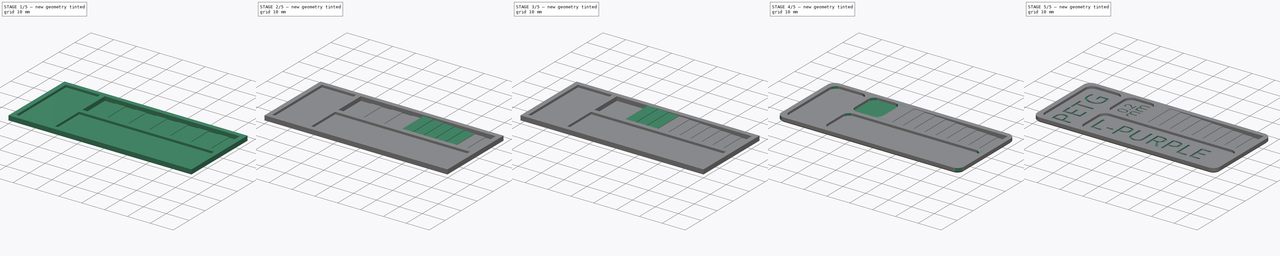
[diagram: build sequence overview — one tinted view per stage of 5, left to right]
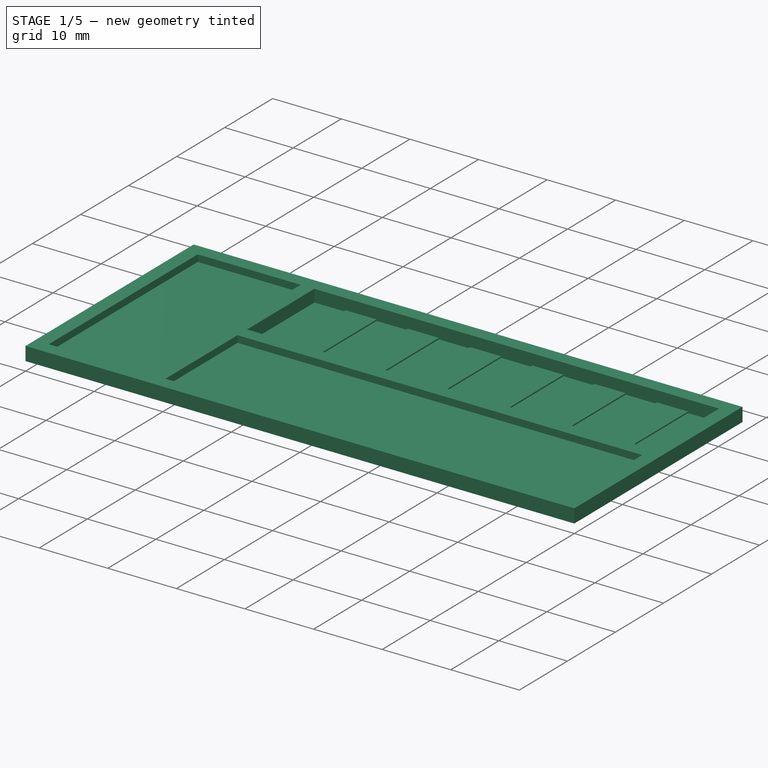
[diagram: stage 1 of 5 — iso view after this stage's code; geometry added in this stage tinted green]
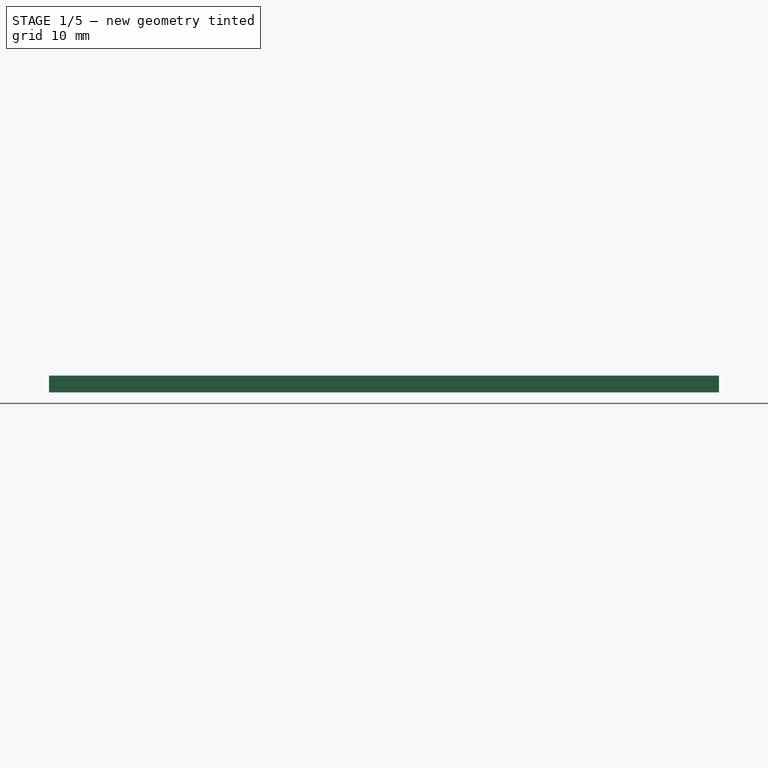
[diagram: stage 1 of 5 — front view after this stage's code; geometry added in this stage tinted green]
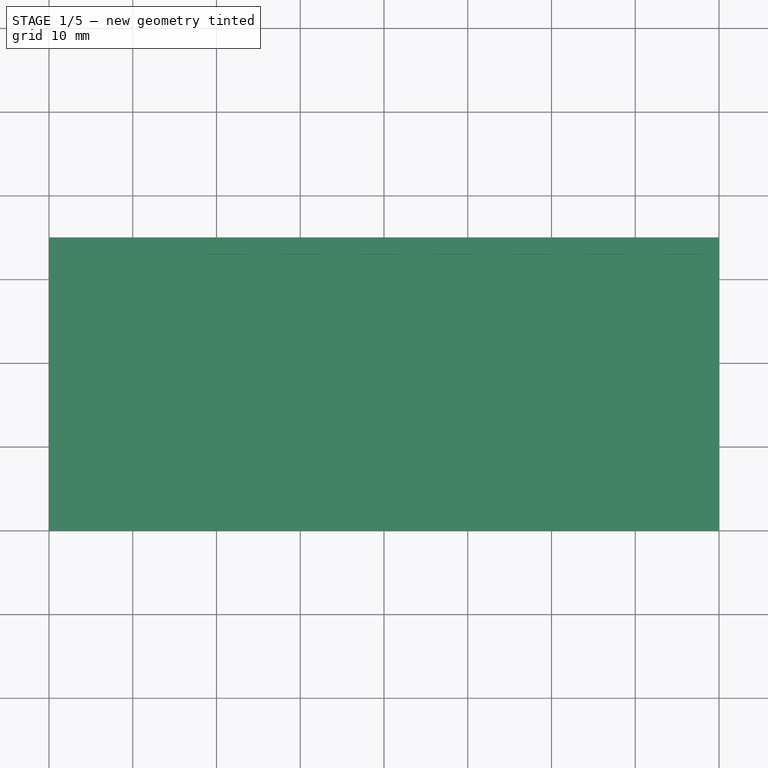
[diagram: stage 1 of 5 — top view after this stage's code; geometry added in this stage tinted green]
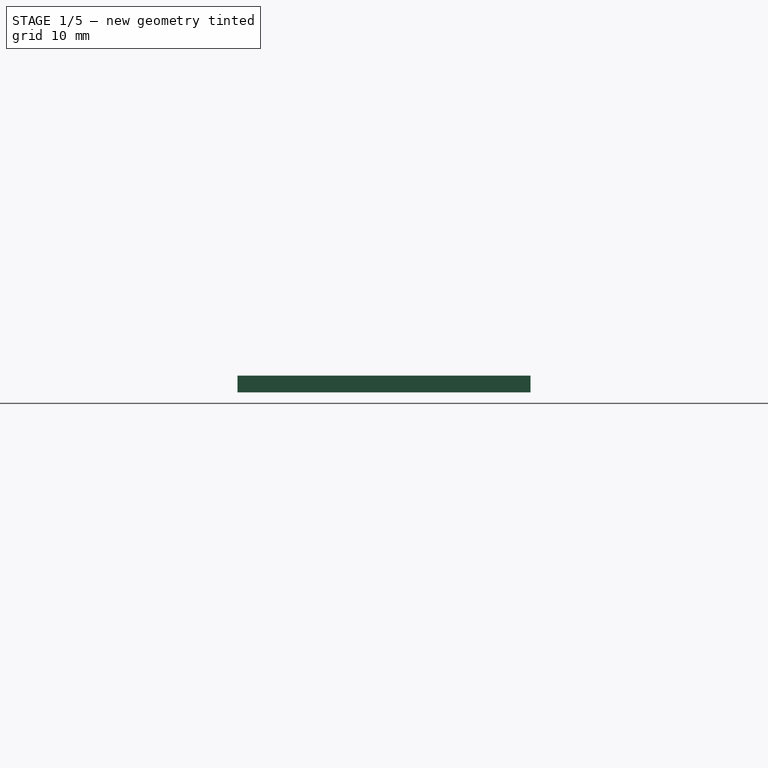
[diagram: stage 1 of 5 — right view after this stage's code; geometry added in this stage tinted green]
FCSTD DOCUMENT  (FreeCAD 0.21R33668 +26 (Git))
Label: Color Swatch
License: All rights reserved
LicenseURL: http://en.wikipedia.org/wiki/All_rights_reserved
objects: PartDesign::Pad×12, PartDesign::Pocket×7, Sketcher::SketchObject×5, Part::Part2DObjectPython×4, PartDesign::Body×2, PartDesign::Fillet×1, PartDesign::Chamfer×1, PartDesign::FeatureBase×1
note: 54 computed .brp shape members not serialized (recipe doc carries the construction recipe); baked Part::Feature solids carry a one-line shape summary decoded from their .brp

FEATURE [Sketcher::SketchObject] Sketch
  FullyConstrained = true
  MapMode = 5
  Support = -> [XY_Plane]
  sketch-geometry (4):
    g0: LineSegment StartX=0 StartY=0 StartZ=0 EndX=80 EndY=0 EndZ=0
    g1: LineSegment StartX=80 StartY=0 StartZ=0 EndX=80 EndY=35 EndZ=0
    g2: LineSegment StartX=80 StartY=35 StartZ=0 EndX=0 EndY=35 EndZ=0
    g3: LineSegment StartX=0 StartY=35 StartZ=0 EndX=0 EndY=0 EndZ=0
  constraints (11):
    c: Coincident(g0,g1)
    c: Coincident(g1,g2)
    c: Coincident(g2,g3)
    c: Coincident(g3,g0)
    c: Horizontal(g0)
    c: Horizontal(g2)
    c: Vertical(g1)
    c: Vertical(g3)
    c: Coincident(g0,g-1)
    c: Distance(g0) = 80
    c: Distance(g1) = 35
FEATURE [PartDesign::Pad] Pad
  Direction = (0,0,1)
  Length = 2
  Length2 = 10
  Profile = -> Sketch
  ReferenceAxis = -> Sketch [N_Axis]
  Type = 0
FEATURE [Sketcher::SketchObject] Sketch001
  ExternalGeometry = -> [Pad]
  FullyConstrained = true
  MapMode = 5
  Placement = pos=(0,0,2) rot=(0,0,1;0rad)
  Support = -> [Pad]
  sketch-geometry (15):
    g0: LineSegment StartX=0 StartY=0 StartZ=0 EndX=2 EndY=0 EndZ=0
    g1: LineSegment StartX=2 StartY=0 StartZ=0 EndX=2 EndY=2 EndZ=0
    g2: LineSegment StartX=2 StartY=2 StartZ=0 EndX=0 EndY=2 EndZ=0
    g3: LineSegment StartX=0 StartY=2 StartZ=0 EndX=0 EndY=0 EndZ=0
    g4: LineSegment StartX=2 StartY=2 StartZ=0 EndX=17 EndY=2 EndZ=0
    g5: LineSegment StartX=17 StartY=2 StartZ=0 EndX=17 EndY=33 EndZ=0
    g6: LineSegment StartX=17 StartY=33 StartZ=0 EndX=2 EndY=33 EndZ=0
    g7: LineSegment StartX=2 StartY=33 StartZ=0 EndX=2 EndY=2 EndZ=0
    g8: LineSegment StartX=2 StartY=2 StartZ=0 EndX=78 EndY=2 EndZ=0
    g9: LineSegment StartX=78 StartY=2 StartZ=0 EndX=78 EndY=17 EndZ=0
    g10: LineSegment StartX=78 StartY=17 StartZ=0 EndX=2 EndY=17 EndZ=0
    g11: LineSegment StartX=2 StartY=17 StartZ=0 EndX=2 EndY=2 EndZ=0
    g12: LineSegment StartX=78 StartY=17 StartZ=0 EndX=19 EndY=17 EndZ=0
    g13: LineSegment StartX=19 StartY=17 StartZ=0 EndX=19 EndY=2 EndZ=0
    g14: LineSegment StartX=19 StartY=2 StartZ=0 EndX=78 EndY=2 EndZ=0
  constraints (41):
    c: Coincident(g0,g1)
    c: Coincident(g1,g2)
    c: Coincident(g2,g3)
    c: Coincident(g3,g0)
    c: Horizontal(g0)
    c: Horizontal(g2)
    c: Vertical(g1)
    c: Vertical(g3)
    c: Coincident(g0,g-3)
    c: Distance(g1) = 2
    c: Distance(g2) = 2
    c: Coincident(g4,g5)
    c: Coincident(g5,g6)
    c: Coincident(g6,g7)
    c: Coincident(g7,g4)
    c: Horizontal(g4)
    c: Horizontal(g6)
    c: Vertical(g5)
    c: Vertical(g7)
    c: Coincident(g4,g1)
    c: Distance(g4) = 15
    c: Coincident(g8,g9)
    c: Coincident(g9,g10)
    c: Coincident(g10,g11)
    c: Coincident(g11,g8)
    c: Horizontal(g8)
    c: Horizontal(g10)
    c: Vertical(g9)
    c: Vertical(g11)
    c: Coincident(g8,g1)
    c: Distance(g11) = 15
    c: DistanceX(g8,g-3) = 2
    c: DistanceY(g6,g-4) = 2
    c: Coincident(g12,g9)
    c: PointOnObject(g12,g10)
    c: Coincident(g13,g12)
    c: PointOnObject(g13,g8)
    c: Vertical(g13)
    c: Coincident(g14,g13)
    c: Coincident(g14,g9)
    c: DistanceX(g4,g13) = 2
FEATURE [PartDesign::Pocket] Pocket
  BaseFeature = -> Pad
  Direction = (0,0,-1)
  Length = 1
  Length2 = 5
  Profile = -> Sketch001
  ReferenceAxis = -> Sketch001 [N_Axis]
  Type = 0
FEATURE [Sketcher::SketchObject] Sketch002
  ExternalGeometry = -> [Pocket]
  FullyConstrained = true
  MapMode = 5
  Placement = pos=(0,0,2) rot=(0,0,1;0rad)
  Support = -> [Pocket]
  sketch-geometry (4):
    g0: LineSegment StartX=19 StartY=19 StartZ=0 EndX=78 EndY=19 EndZ=0
    g1: LineSegment StartX=78 StartY=19 StartZ=0 EndX=78 EndY=33 EndZ=0
    g2: LineSegment StartX=78 StartY=33 StartZ=0 EndX=19 EndY=33 EndZ=0
    g3: LineSegment StartX=19 StartY=33 StartZ=0 EndX=19 EndY=19 EndZ=0
  constraints (12):
    c: Coincident(g0,g1)
    c: Coincident(g1,g2)
    c: Coincident(g2,g3)
    c: Coincident(g3,g0)
    c: Horizontal(g0)
    c: Horizontal(g2)
    c: Vertical(g1)
    c: Vertical(g3)
    c: DistanceY(g-3,g0) = 2
    c: DistanceY(g1,g-5) = 2
    c: DistanceX(g-4,g2) = 2
    c: DistanceX(g1,g-5) = 2
FEATURE [Part::Part2DObjectPython] ShapeString  label="Color Name"  # Draft 2D object (typed FeaturePython)
  FontFile = F:/16 Bit Git Repro/16 Bit Store/Font/OpenSans-Regular.ttf
  MakeFace = true
  Placement = pos=(20.33,5.565,2) rot=(0,0,1;0rad)
  Size = 10
  String = L-PURPLE
  Tracking = 0
FEATURE [Part::Part2DObjectPython] ShapeString001  label="Material Name"  # Draft 2D object (typed FeaturePython)
  FontFile = F:/16 Bit Git Repro/16 Bit Store/Font/OpenSans-Regular.ttf
  MakeFace = true
  Placement = pos=(13.435,2.92,2) rot=(0,0,1;1.5708rad)
  Size = 10
  String = PETG
  Tracking = 0
FEATURE [PartDesign::Pocket] Pocket001
  BaseFeature = -> Pocket
  Direction = (0,0,-1)
  Length = 0
  Length2 = 5
  Offset = 0.2
  Profile = -> Sketch002
  ReferenceAxis = -> Sketch002 [N_Axis]
  Reversed = true
  Type = 3
  UpToFace = -> Pocket [Face4]
FEATURE [Sketcher::SketchObject] Sketch003
  ExternalGeometry = -> [Pocket001]
  FullyConstrained = true
  MapMode = 5
  Placement = pos=(0,0,0.2) rot=(0,0,1;0rad)
  Support = -> [Pocket001]
  sketch-geometry (52):
    g0: LineSegment StartX=78 StartY=33 StartZ=0 EndX=73.4615 EndY=33 EndZ=0
    g1: LineSegment StartX=73.4615 StartY=33 StartZ=0 EndX=73.4615 EndY=19 EndZ=0
    g2: LineSegment StartX=73.4615 StartY=19 StartZ=0 EndX=78 EndY=19 EndZ=0
    g3: LineSegment StartX=78 StartY=19 StartZ=0 EndX=78 EndY=33 EndZ=0
    g4: LineSegment StartX=68.9231 StartY=19 StartZ=0 EndX=64.3846 EndY=19 EndZ=0
    g5: LineSegment StartX=64.3846 StartY=19 StartZ=0 EndX=64.3846 EndY=33 EndZ=0
    g6: LineSegment StartX=64.3846 StartY=33 StartZ=0 EndX=68.9231 EndY=33 EndZ=0
    g7: LineSegment StartX=68.9231 StartY=33 StartZ=0 EndX=68.9231 EndY=19 EndZ=0
    g8: LineSegment StartX=59.8462 StartY=33 StartZ=0 EndX=55.3077 EndY=33 EndZ=0
    g9: LineSegment StartX=55.3077 StartY=33 StartZ=0 EndX=55.3077 EndY=19 EndZ=0
    g10: LineSegment StartX=55.3077 StartY=19 StartZ=0 EndX=59.8462 EndY=19 EndZ=0
    g11: LineSegment StartX=59.8462 StartY=19 StartZ=0 EndX=59.8462 EndY=33 EndZ=0
    g12: LineSegment StartX=50.7692 StartY=19 StartZ=0 EndX=46.2308 EndY=19 EndZ=0
    g13: LineSegment StartX=46.2308 StartY=19 StartZ=0 EndX=46.2308 EndY=33 EndZ=0
    g14: LineSegment StartX=46.2308 StartY=33 StartZ=0 EndX=50.7692 EndY=33 EndZ=0
    g15: LineSegment StartX=50.7692 StartY=33 StartZ=0 EndX=50.7692 EndY=19 EndZ=0
    g16: LineSegment StartX=41.6923 StartY=33 StartZ=0 EndX=37.1538 EndY=33 EndZ=0
    g17: LineSegment StartX=37.1538 StartY=33 StartZ=0 EndX=37.1538 EndY=19 EndZ=0
    g18: LineSegment StartX=37.1538 StartY=19 StartZ=0 EndX=41.6923 EndY=19 EndZ=0
    g19: LineSegment StartX=41.6923 StartY=19 StartZ=0 EndX=41.6923 EndY=33 EndZ=0
    g20: LineSegment StartX=32.6154 StartY=19 StartZ=0 EndX=28.0769 EndY=19 EndZ=0
    g21: LineSegment StartX=28.0769 StartY=19 StartZ=0 EndX=28.0769 EndY=33 EndZ=0
    g22: LineSegment StartX=28.0769 StartY=33 StartZ=0 EndX=32.6154 EndY=33 EndZ=0
    g23: LineSegment StartX=32.6154 StartY=33 StartZ=0 EndX=32.6154 EndY=19 EndZ=0
    g24: LineSegment StartX=19 StartY=33 StartZ=0 EndX=23.5385 EndY=33 EndZ=0
    g25: LineSegment StartX=23.5385 StartY=33 StartZ=0 EndX=23.5385 EndY=19 EndZ=0
    g26: LineSegment StartX=23.5385 StartY=19 StartZ=0 EndX=19 EndY=19 EndZ=0
    g27: LineSegment StartX=19 StartY=19 StartZ=0 EndX=19 EndY=33 EndZ=0
    g28: LineSegment StartX=23.5385 StartY=33 StartZ=0 EndX=28.0769 EndY=33 EndZ=0
    g29: LineSegment StartX=28.0769 StartY=33 StartZ=0 EndX=28.0769 EndY=19 EndZ=0
    g30: LineSegment StartX=28.0769 StartY=19 StartZ=0 EndX=23.5385 EndY=19 EndZ=0
    g31: LineSegment StartX=23.5385 StartY=19 StartZ=0 EndX=23.5385 EndY=33 EndZ=0
    g32: LineSegment StartX=32.6154 StartY=33 StartZ=0 EndX=37.1538 EndY=33 EndZ=0
    g33: LineSegment StartX=37.1538 StartY=33 StartZ=0 EndX=37.1538 EndY=19 EndZ=0
    g34: LineSegment StartX=37.1538 StartY=19 StartZ=0 EndX=32.6154 EndY=19 EndZ=0
    g35: LineSegment StartX=32.6154 StartY=19 StartZ=0 EndX=32.6154 EndY=33 EndZ=0
    g36: LineSegment StartX=41.6923 StartY=33 StartZ=0 EndX=46.2308 EndY=33 EndZ=0
    g37: LineSegment StartX=46.2308 StartY=33 StartZ=0 EndX=46.2308 EndY=19 EndZ=0
    g38: LineSegment StartX=46.2308 StartY=19 StartZ=0 EndX=41.6923 EndY=19 EndZ=0
    g39: LineSegment StartX=41.6923 StartY=19 StartZ=0 EndX=41.6923 EndY=33 EndZ=0
    g40: LineSegment StartX=50.7692 StartY=33 StartZ=0 EndX=55.3077 EndY=33 EndZ=0
    g41: LineSegment StartX=55.3077 StartY=33 StartZ=0 EndX=55.3077 EndY=19 EndZ=0
    g42: LineSegment StartX=55.3077 StartY=19 StartZ=0 EndX=50.7692 EndY=19 EndZ=0
    g43: LineSegment StartX=50.7692 StartY=19 StartZ=0 EndX=50.7692 EndY=33 EndZ=0
    g44: LineSegment StartX=59.8462 StartY=33 StartZ=0 EndX=64.3846 EndY=33 EndZ=0
    g45: LineSegment StartX=64.3846 StartY=33 StartZ=0 EndX=64.3846 EndY=19 EndZ=0
    g46: LineSegment StartX=64.3846 StartY=19 StartZ=0 EndX=59.8462 EndY=19 EndZ=0
    g47: LineSegment StartX=59.8462 StartY=19 StartZ=0 EndX=59.8462 EndY=33 EndZ=0
    g48: LineSegment StartX=68.9231 StartY=33 StartZ=0 EndX=73.4615 EndY=33 EndZ=0
    g49: LineSegment StartX=73.4615 StartY=33 StartZ=0 EndX=73.4615 EndY=19 EndZ=0
    g50: LineSegment StartX=73.4615 StartY=19 StartZ=0 EndX=68.9231 EndY=19 EndZ=0
    g51: LineSegment StartX=68.9231 StartY=19 StartZ=0 EndX=68.9231 EndY=33 EndZ=0
  constraints (142):
    c: Coincident(g0,g1)
    c: Coincident(g1,g2)
    c: Coincident(g2,g3)
    c: Coincident(g3,g0)
    c: Horizontal(g0)
    c: Horizontal(g2)
    c: Vertical(g1)
    c: Vertical(g3)
    c: Coincident(g0,g-4)
    c: PointOnObject(g1,g-3)
    c: Coincident(g4,g5)
    c: Coincident(g5,g6)
    c: Coincident(g6,g7)
    c: Coincident(g7,g4)
    c: Horizontal(g4)
    c: Horizontal(g6)
    c: Vertical(g5)
    c: Vertical(g7)
    c: PointOnObject(g4,g-3)
    c: PointOnObject(g5,g-4)
    c: Coincident(g8,g9)
    c: Coincident(g9,g10)
    c: Coincident(g10,g11)
    c: Coincident(g11,g8)
    c: Horizontal(g8)
    c: Horizontal(g10)
    c: Vertical(g9)
    c: Vertical(g11)
    c: PointOnObject(g8,g-4)
    c: PointOnObject(g9,g-3)
    c: Coincident(g12,g13)
    c: Coincident(g13,g14)
    c: Coincident(g14,g15)
    c: Coincident(g15,g12)
    c: Horizontal(g12)
    c: Horizontal(g14)
    c: Vertical(g13)
    c: Vertical(g15)
    c: PointOnObject(g12,g-3)
    c: PointOnObject(g13,g-4)
    c: Coincident(g16,g17)
    c: Coincident(g17,g18)
    c: Coincident(g18,g19)
    c: Coincident(g19,g16)
    c: Horizontal(g16)
    c: Horizontal(g18)
    c: Vertical(g17)
    c: Vertical(g19)
    c: PointOnObject(g16,g-4)
    c: PointOnObject(g17,g-3)
    c: Coincident(g20,g21)
    c: Coincident(g21,g22)
    c: Coincident(g22,g23)
    c: Coincident(g23,g20)
    c: Horizontal(g20)
    c: Horizontal(g22)
    c: Vertical(g21)
    c: Vertical(g23)
    c: PointOnObject(g20,g-3)
    c: Coincident(g24,g25)
    c: Coincident(g25,g26)
    c: Coincident(g26,g27)
    c: Coincident(g27,g24)
    c: Horizontal(g24)
    c: Horizontal(g26)
    c: Vertical(g25)
    c: Vertical(g27)
    c: Coincident(g24,g-4)
    c: PointOnObject(g25,g-3)
    c: PointOnObject(g21,g-4)
    c: Coincident(g28,g29)
    c: Coincident(g29,g30)
    c: Coincident(g30,g31)
    c: Coincident(g31,g28)
    c: Horizontal(g28)
    c: Horizontal(g30)
    c: Vertical(g29)
    c: Vertical(g31)
    c: Coincident(g28,g24)
    c: Coincident(g29,g20)
    c: Coincident(g32,g33)
    c: Coincident(g33,g34)
    c: Coincident(g34,g35)
    c: Coincident(g35,g32)
    c: Horizontal(g32)
    c: Horizontal(g34)
    c: Vertical(g33)
    c: Vertical(g35)
    c: Coincident(g32,g22)
    c: Coincident(g33,g17)
    c: Coincident(g36,g37)
    c: Coincident(g37,g38)
    c: Coincident(g38,g39)
    c: Coincident(g39,g36)
    c: Horizontal(g36)
    c: Horizontal(g38)
    c: Vertical(g37)
    c: Vertical(g39)
    c: Coincident(g36,g16)
    c: Coincident(g37,g12)
    c: Coincident(g40,g41)
    c: Coincident(g41,g42)
    c: Coincident(g42,g43)
    c: Coincident(g43,g40)
    c: Horizontal(g40)
    c: Horizontal(g42)
    c: Vertical(g41)
    c: Vertical(g43)
    c: Coincident(g40,g14)
    c: Coincident(g41,g9)
    c: Coincident(g44,g45)
    c: Coincident(g45,g46)
    c: Coincident(g46,g47)
    c: Coincident(g47,g44)
    c: Horizontal(g44)
    c: Horizontal(g46)
    c: Vertical(g45)
    c: Vertical(g47)
    c: Coincident(g44,g8)
    c: Coincident(g45,g4)
    c: Coincident(g48,g49)
    c: Coincident(g49,g50)
    c: Coincident(g50,g51)
    c: Coincident(g51,g48)
    c: Horizontal(g48)
    c: Horizontal(g50)
    c: Vertical(g49)
    c: Vertical(g51)
    c: Coincident(g48,g6)
    c: Coincident(g49,g1)
    c: Equal(g26,g30)
    c: Equal(g30,g20)
    c: Equal(g34,g18)
    c: Equal(g18,g38)
    c: Equal(g38,g12)
    c: Equal(g12,g42)
    c: Equal(g42,g10)
    c: Equal(g10,g46)
    c: Equal(g46,g4)
    c: Equal(g50,g4)
    c: Equal(g50,g2)
    c: Equal(g20,g34)
FEATURE [PartDesign::Pad] Pad001
  BaseFeature = -> Pocket001
  Direction = (0,0,1)
  Length = 0.2
  Length2 = 10
  Profile = -> Sketch003
  ReferenceAxis = -> Sketch003 [N_Axis]
  Refine = true
  Type = 0
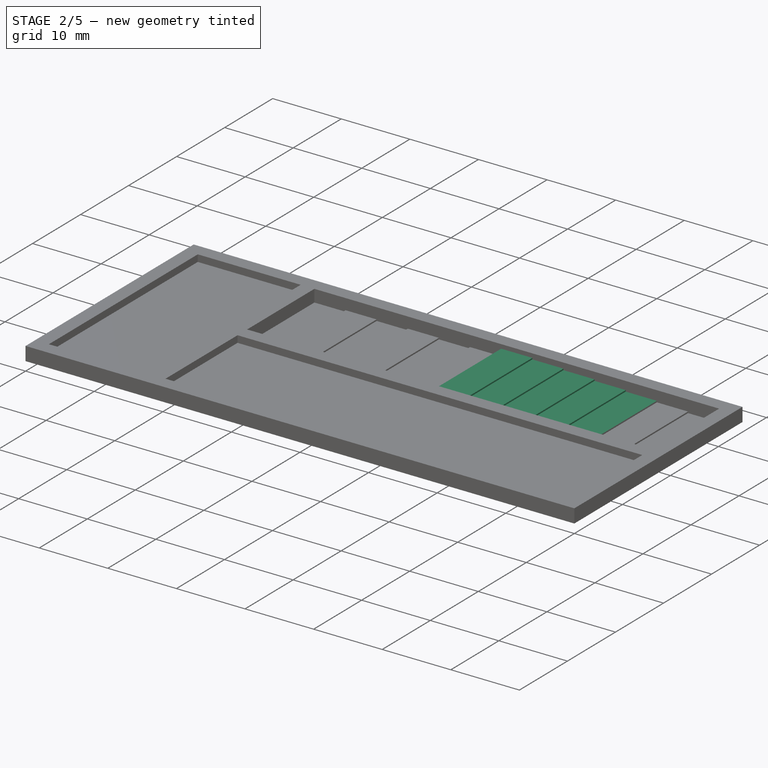
[diagram: stage 2 of 5 — iso view after this stage's code; geometry added in this stage tinted green]
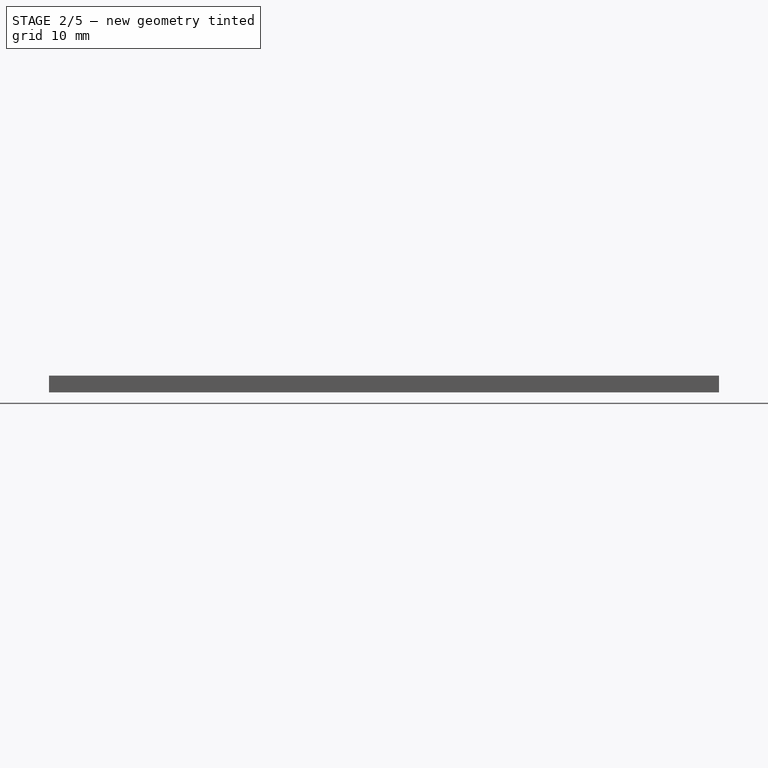
[diagram: stage 2 of 5 — front view after this stage's code; geometry added in this stage tinted green]
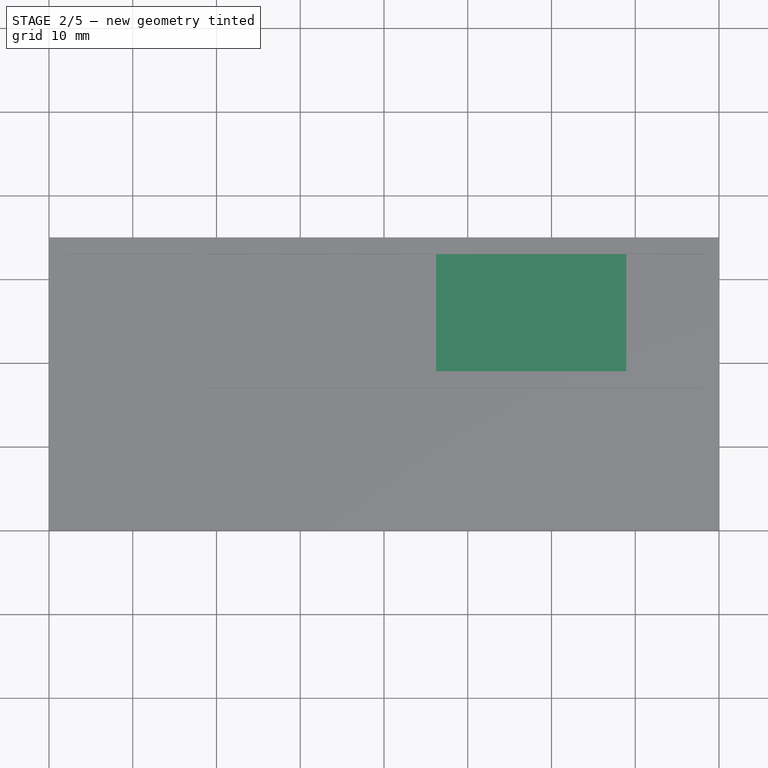
[diagram: stage 2 of 5 — top view after this stage's code; geometry added in this stage tinted green]
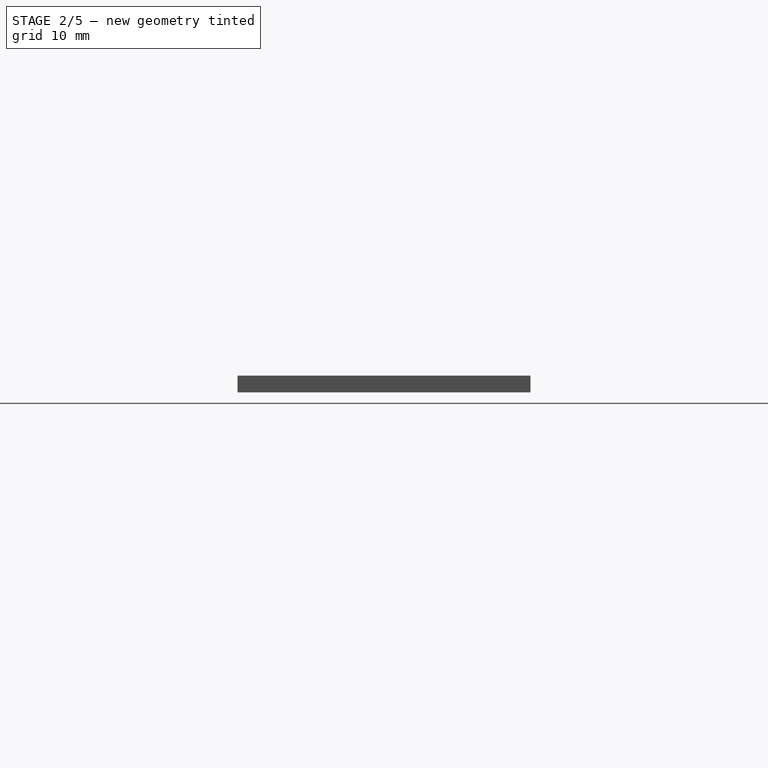
[diagram: stage 2 of 5 — right view after this stage's code; geometry added in this stage tinted green]
FEATURE [PartDesign::Pad] Pad002
  BaseFeature = -> Pad001
  Direction = (0,0,1)
  Length = 10
  Length2 = 10
  Offset = 0.2
  Profile = -> Pad001 [Face25]
  Refine = true
  Type = 3
  UpToFace = -> Pad001 [Face23]
FEATURE [PartDesign::Pad] Pad003
  BaseFeature = -> Pad002
  Direction = (0,0,1)
  Length = 10
  Length2 = 10
  Offset = 0.2
  Profile = -> Pad002 [Face27]
  Refine = true
  Type = 3
  UpToFace = -> Pad002 [Face25]
FEATURE [PartDesign::Pad] Pad004
  BaseFeature = -> Pad003
  Direction = (0,0,1)
  Length = 10
  Length2 = 10
  Offset = 0.2
  Profile = -> Pad003 [Face28]
  Refine = true
  Type = 3
  UpToFace = -> Pad003 [Face27]
FEATURE [PartDesign::Pad] Pad005
  BaseFeature = -> Pad004
  Direction = (0,0,1)
  Length = 10
  Length2 = 10
  Offset = 0.2
  Profile = -> Pad004 [Face31]
  Refine = true
  Type = 3
  UpToFace = -> Pad004 [Face29]
FEATURE [PartDesign::Pad] Pad006
  BaseFeature = -> Pad005
  Direction = (0,0,1)
  Length = 10
  Length2 = 10
  Offset = 0.2
  Profile = -> Pad005 [Face32]
  Refine = true
  Type = 3
  UpToFace = -> Pad005 [Face31]
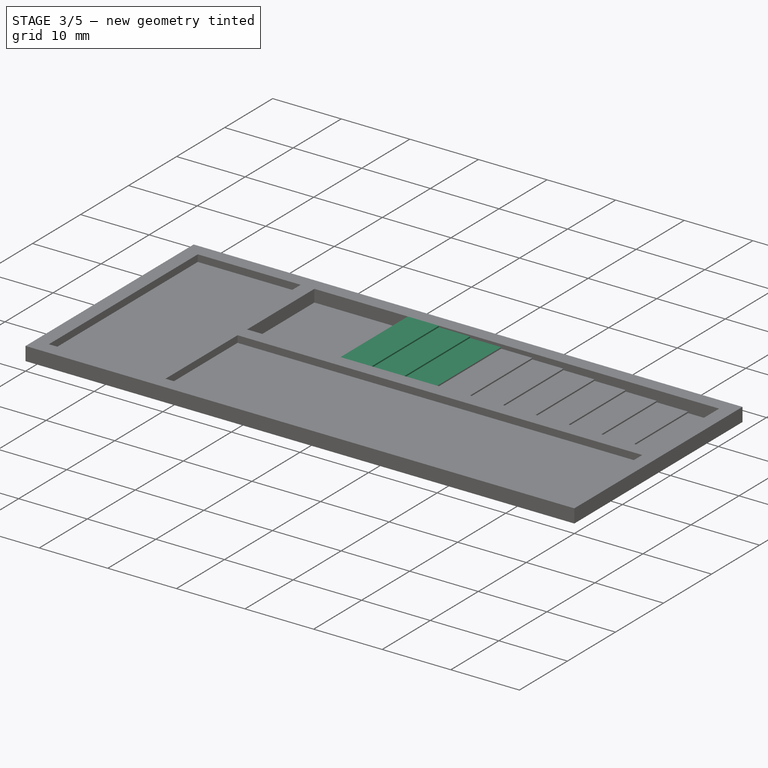
[diagram: stage 3 of 5 — iso view after this stage's code; geometry added in this stage tinted green]
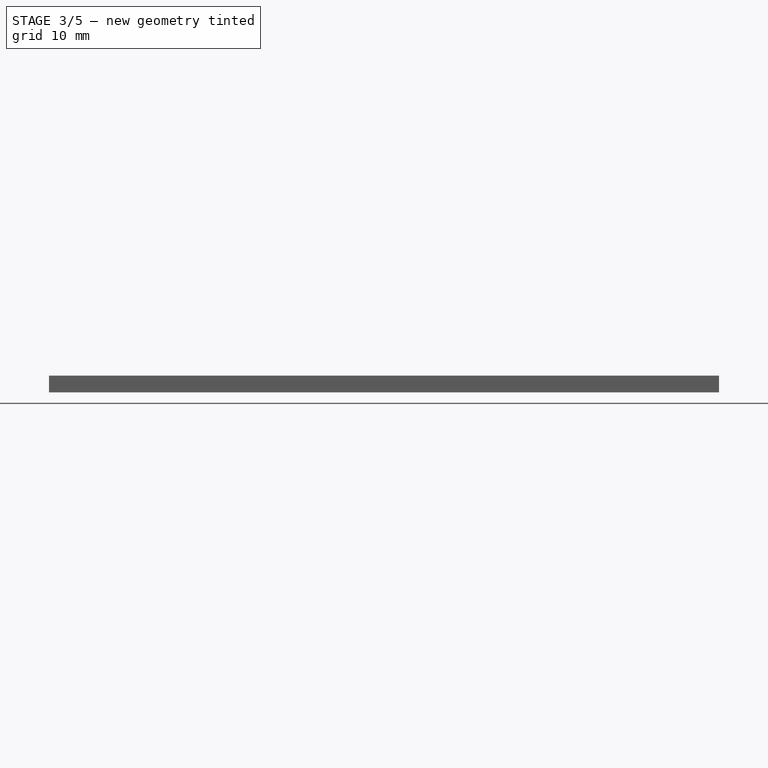
[diagram: stage 3 of 5 — front view after this stage's code; geometry added in this stage tinted green]
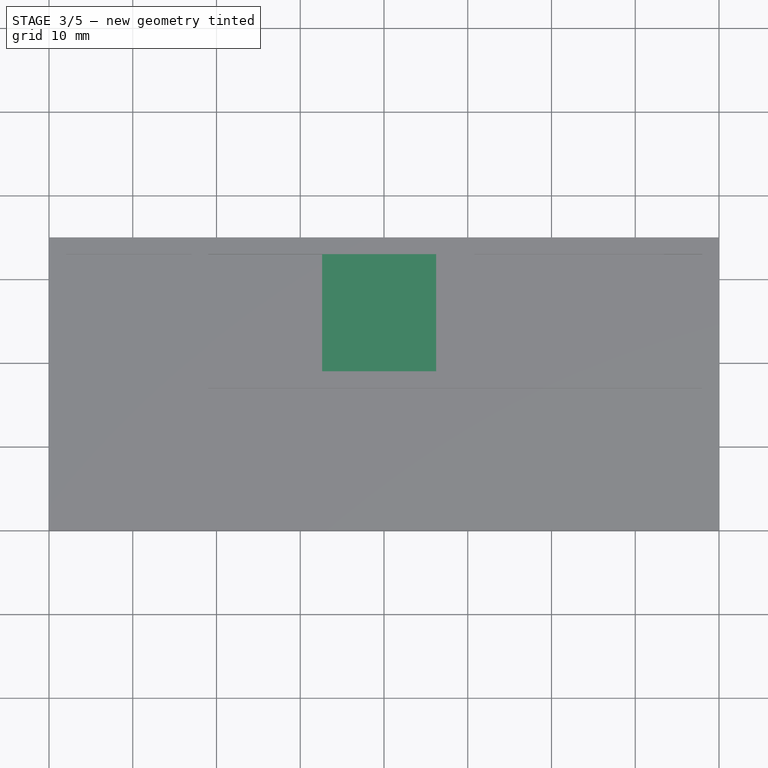
[diagram: stage 3 of 5 — top view after this stage's code; geometry added in this stage tinted green]
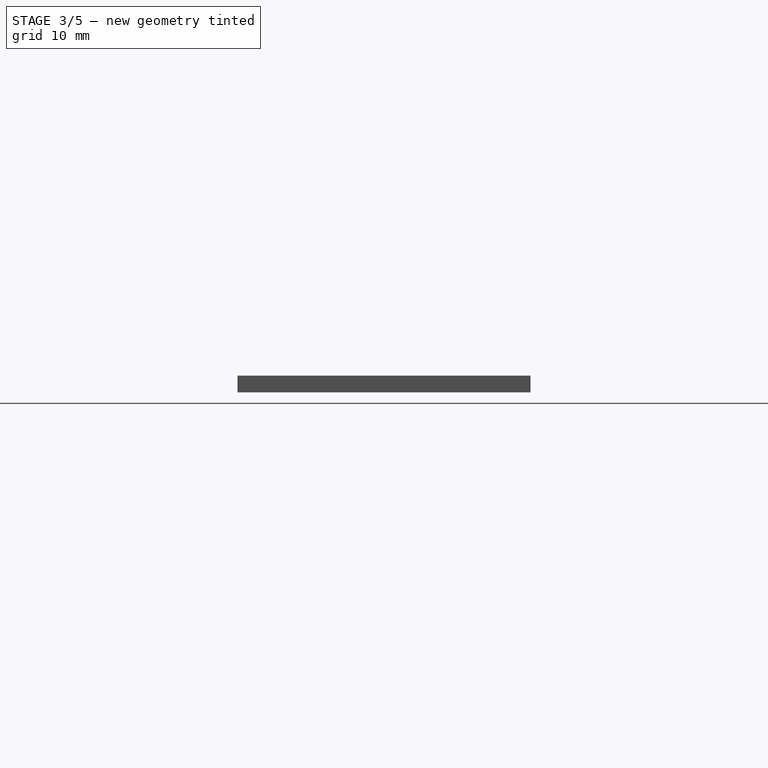
[diagram: stage 3 of 5 — right view after this stage's code; geometry added in this stage tinted green]
FEATURE [PartDesign::Pad] Pad007
  BaseFeature = -> Pad006
  Direction = (0,0,1)
  Length = 10
  Length2 = 10
  Offset = 0.2
  Profile = -> Pad006 [Face35]
  Refine = true
  Type = 3
  UpToFace = -> Pad006 [Face33]
FEATURE [PartDesign::Pad] Pad008
  BaseFeature = -> Pad007
  Direction = (0,0,1)
  Length = 10
  Length2 = 10
  Offset = 0.2
  Profile = -> Pad007 [Face36]
  Type = 3
  UpToFace = -> Pad007 [Face35]
FEATURE [PartDesign::Pad] Pad009
  BaseFeature = -> Pad008
  Direction = (0,0,1)
  Length = 10
  Length2 = 10
  Offset = 0.2
  Profile = -> Pad008 [Face39]
  Refine = true
  Type = 3
  UpToFace = -> Pad008 [Face37]
FEATURE [PartDesign::Pocket] Pocket002
  BaseFeature = -> Pad009
  Direction = (-1,0,0)
  Length = 5
  Length2 = 5
  Profile = -> Pad009 [Face42]
  Refine = true
  Type = 0
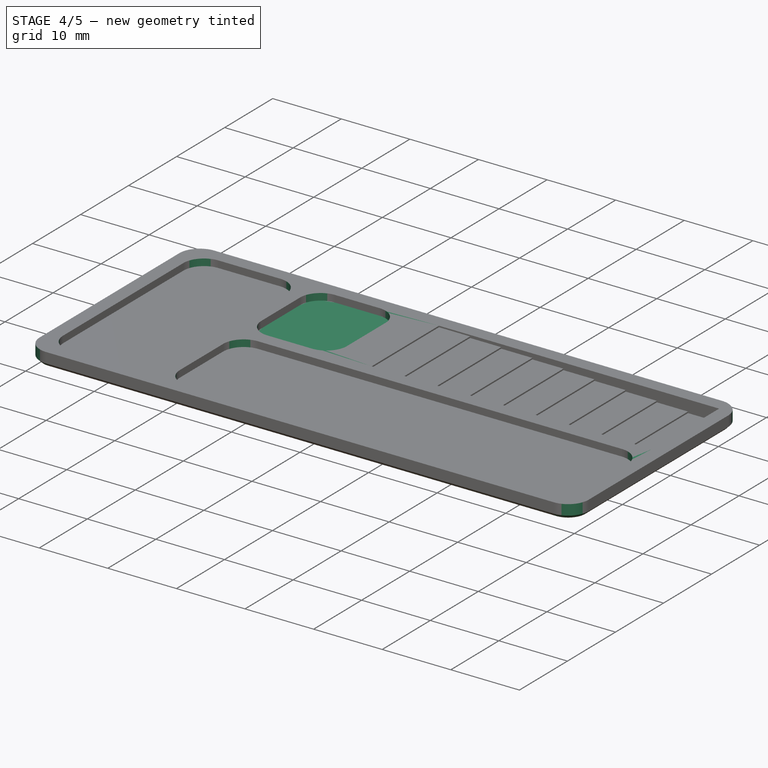
[diagram: stage 4 of 5 — iso view after this stage's code; geometry added in this stage tinted green]
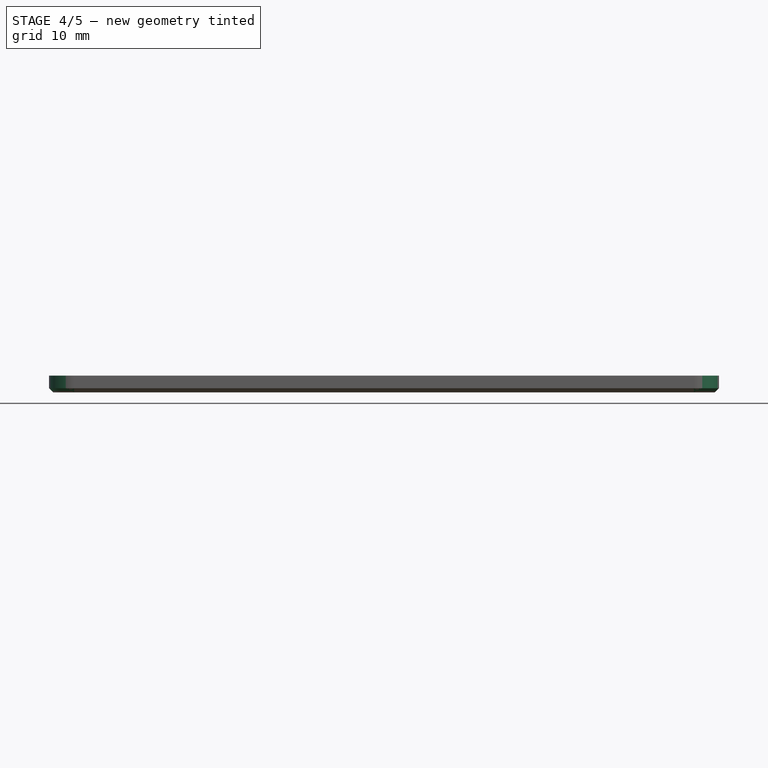
[diagram: stage 4 of 5 — front view after this stage's code; geometry added in this stage tinted green]
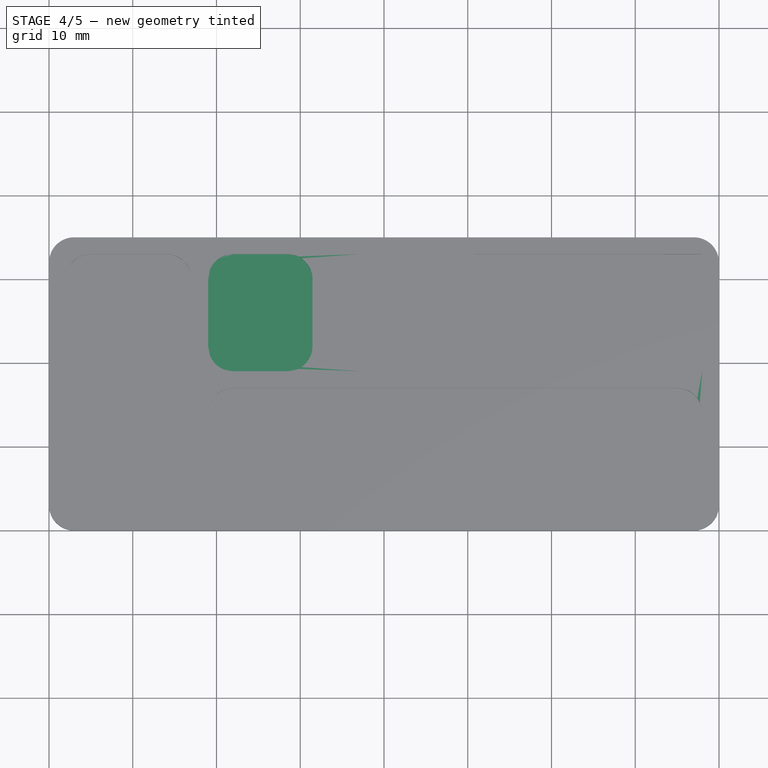
[diagram: stage 4 of 5 — top view after this stage's code; geometry added in this stage tinted green]
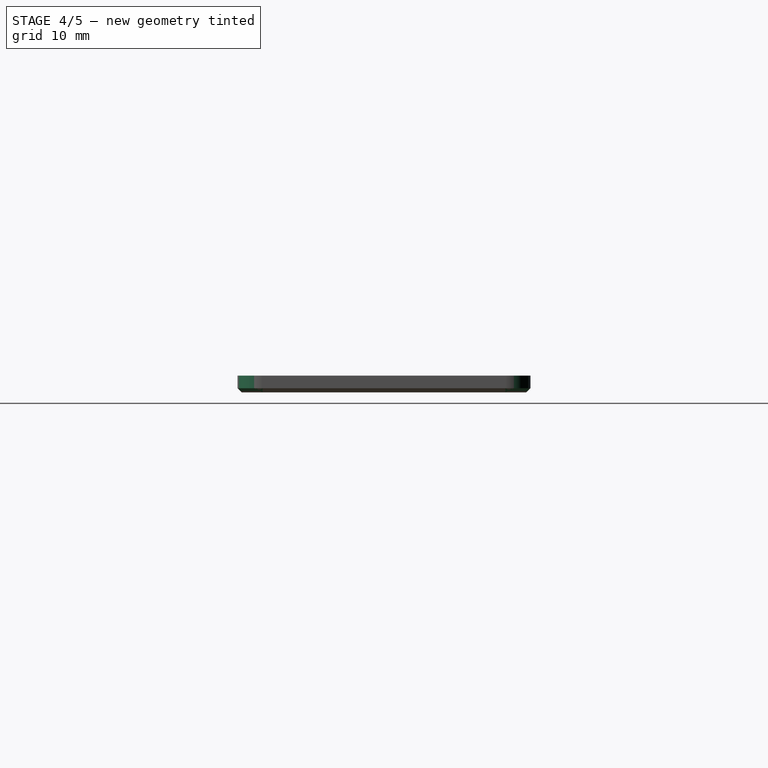
[diagram: stage 4 of 5 — right view after this stage's code; geometry added in this stage tinted green]
FEATURE [PartDesign::Pad] Pad010
  BaseFeature = -> Pocket002
  Direction = (0,0,1)
  Length = 10
  Length2 = 10
  Profile = -> Pocket002 [Face42]
  Type = 3
  UpToFace = -> Pocket002 [Face21]
FEATURE [Part::Part2DObjectPython] ShapeString002  label="Step Size"  # Draft 2D object (typed FeaturePython)
  FontFile = F:/16 Bit Git Repro/16 Bit Store/Font/OpenSans-Regular.ttf
  MakeFace = true
  Placement = pos=(24.93,21.988,2) rot=(0,0,1;1.5708rad)
  Size = 5
  String = 0.2
  Tracking = 0
FEATURE [Part::Part2DObjectPython] ShapeString003  label="unit"  # Draft 2D object (typed FeaturePython)
  FontFile = F:/16 Bit Git Repro/16 Bit Store/Font/OpenSans-Regular.ttf
  MakeFace = true
  Placement = pos=(29.53,19.87,2) rot=(0,0,1;1.5708rad)
  Size = 6
  String = mm
  Tracking = 0
FEATURE [Sketcher::SketchObject] Sketch004
  ExternalGeometry = -> [Pad010]
  FullyConstrained = true
  MapMode = 5
  Placement = pos=(0,0,1) rot=(0,0,1;0rad)
  Support = -> [Pad010]
  sketch-geometry (7):
    g0: LineSegment StartX=19 StartY=33 StartZ=0 EndX=31.46 EndY=33 EndZ=0
    g1: LineSegment StartX=31.46 StartY=33 StartZ=0 EndX=31.46 EndY=19 EndZ=0
    g2: LineSegment StartX=31.46 StartY=19 StartZ=0 EndX=19 EndY=19 EndZ=0
    g3: LineSegment StartX=19 StartY=19 StartZ=0 EndX=19 EndY=33 EndZ=0
    g4: LineSegment StartX=31.46 StartY=33 StartZ=0 EndX=32.6154 EndY=33 EndZ=0
    g5: LineSegment StartX=32.6154 StartY=33 StartZ=0 EndX=32.6154 EndY=19 EndZ=0
    g6: LineSegment StartX=32.6154 StartY=19 StartZ=0 EndX=31.46 EndY=19 EndZ=0
  constraints (16):
    c: Coincident(g0,g1)
    c: Coincident(g1,g2)
    c: Coincident(g2,g3)
    c: Coincident(g3,g0)
    c: Horizontal(g0)
    c: Horizontal(g2)
    c: Vertical(g1)
    c: Coincident(g0,g-3)
    c: Coincident(g2,g-3)
    c: Distance(g2) = 12.46
    c: Coincident(g4,g1)
    c: Coincident(g4,g-4)
    c: Coincident(g5,g4)
    c: Coincident(g5,g-4)
    c: Coincident(g6,g5)
    c: Coincident(g6,g1)
FEATURE [PartDesign::Pad] Pad011
  BaseFeature = -> Pad010
  Direction = (0,0,1)
  Length = 10
  Length2 = 10
  Profile = -> Sketch004
  ReferenceAxis = -> Sketch004 [N_Axis]
  Refine = true
  Type = 3
  UpToFace = -> Pad010 [Face5]
FEATURE [PartDesign::Fillet] Fillet
  Base = -> Pad011 [Edge1,Edge5,Edge8,Edge2,Edge96,Edge93,Edge94,Edge98,Edge107,Edge30,Edge29,Edge32,Edge34,Edge105,Edge101,Edge103]
  BaseFeature = -> Pad011
  Radius = 3
  SupportTransform = false
  UseAllEdges = false
FEATURE [PartDesign::Chamfer] Chamfer
  Angle = 45
  Base = -> Fillet [Edge1]
  BaseFeature = -> Fillet
  ChamferType = 0
  FlipDirection = false
  Size = 0.5
  Size2 = 1
  SupportTransform = false
  UseAllEdges = false
FEATURE [PartDesign::Body] Body  label="Blank Base"
  Group = -> [Sketch,Pad,Sketch001,Pocket,Sketch002,Pocket001,Sketch003,Pad001,Pad002,Pad003,Pad004,Pad005,Pad006,Pad007,Pad008,Pad009,Pocket002,Pad010,Sketch004,Pad011,Fillet,Chamfer]
  Origin = -> Origin
  Tip = -> Chamfer
FEATURE [PartDesign::FeatureBase] Clone
  BaseFeature = -> Body
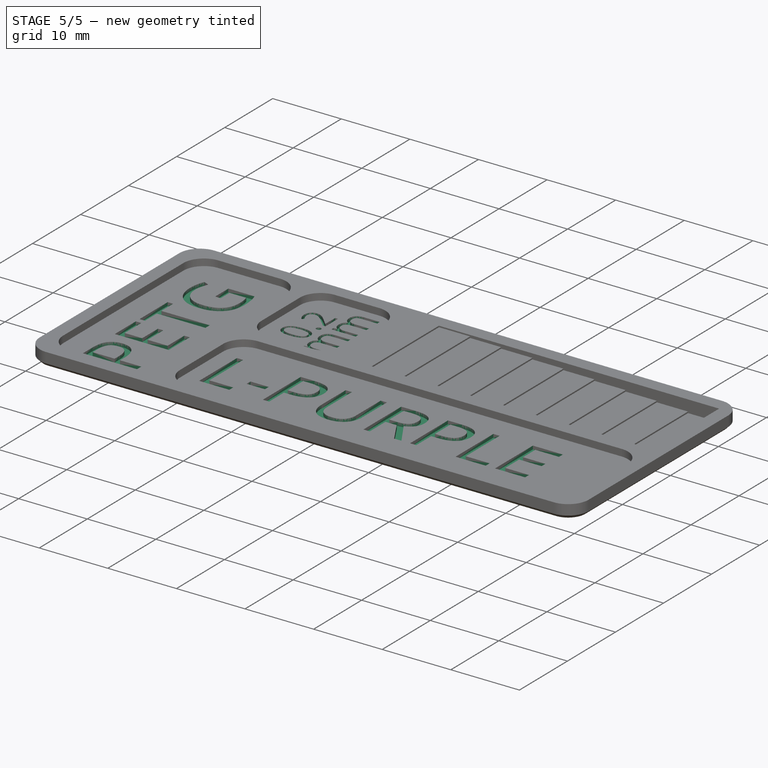
[diagram: stage 5 of 5 — iso view after this stage's code; geometry added in this stage tinted green]
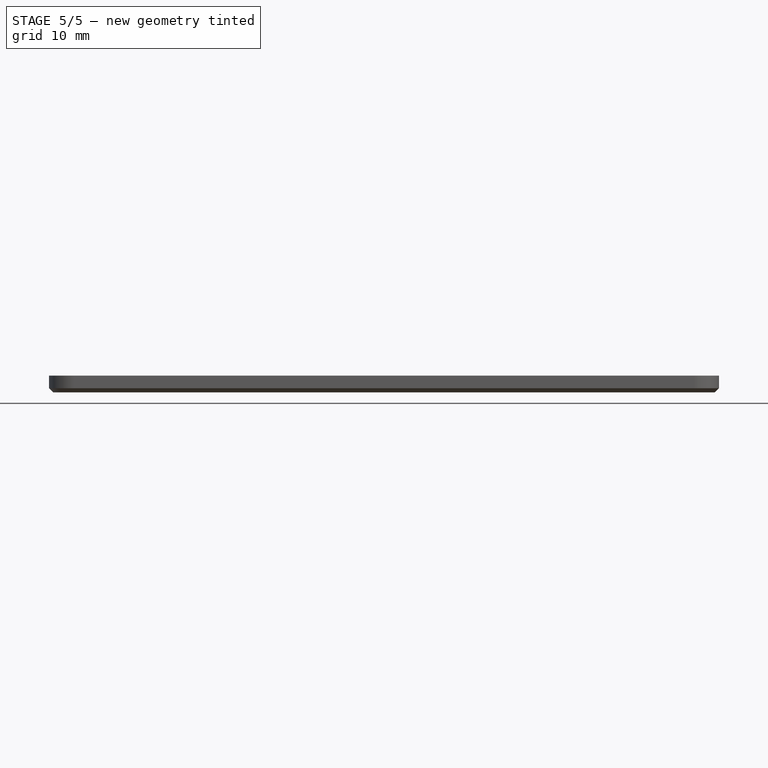
[diagram: stage 5 of 5 — front view after this stage's code; geometry added in this stage tinted green]
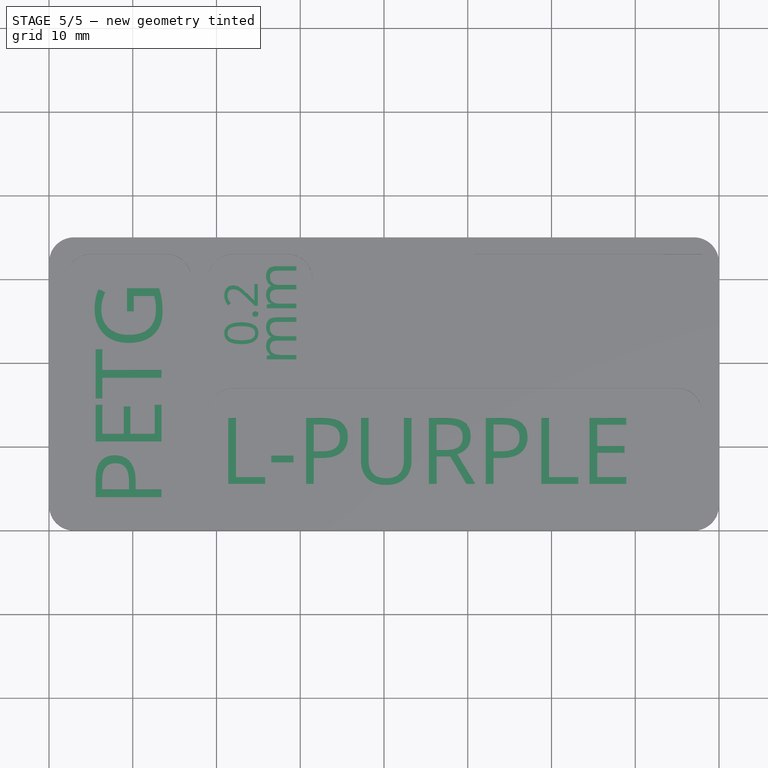
[diagram: stage 5 of 5 — top view after this stage's code; geometry added in this stage tinted green]
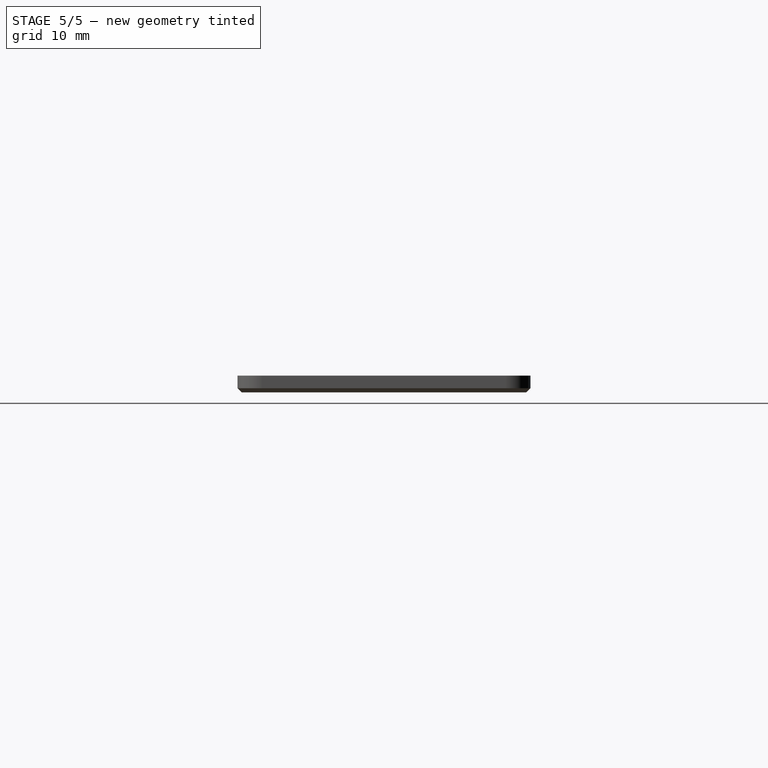
[diagram: stage 5 of 5 — right view after this stage's code; geometry added in this stage tinted green]
FEATURE [PartDesign::Pocket] Pocket003  label="Color"
  BaseFeature = -> Clone
  Direction = (0,1.2e-14,-1)
  Length = 0
  Length2 = 5
  Offset = 0.5
  Profile = -> ShapeString
  ReferenceAxis = -> ShapeString [N_Axis]
  Type = 3
  UpToFace = -> Chamfer [Face64]
FEATURE [PartDesign::Pocket] Pocket004  label="Material"
  BaseFeature = -> Pocket003
  Direction = (0,0,-1)
  Length = 0
  Length2 = 5
  Offset = 0.5
  Profile = -> ShapeString001
  ReferenceAxis = -> ShapeString001 [N_Axis]
  Type = 3
  UpToFace = -> Chamfer [Face65]
FEATURE [PartDesign::Pocket] Pocket005  label="Layer Size"
  BaseFeature = -> Pocket004
  Direction = (0,0,-1)
  Length = 0
  Length2 = 5
  Offset = 0.5
  Profile = -> ShapeString002
  ReferenceAxis = -> ShapeString002 [N_Axis]
  Type = 3
  UpToFace = -> Chamfer [Face66]
FEATURE [PartDesign::Pocket] Pocket006  label="Units"
  BaseFeature = -> Pocket005
  Direction = (0,0,-1)
  Length = 0
  Length2 = 5
  Offset = 0.5
  Profile = -> ShapeString003
  ReferenceAxis = -> ShapeString003 [N_Axis]
  Type = 3
  UpToFace = -> Chamfer [Face66]
FEATURE [PartDesign::Body] Body001  label="Named Swatch"
  Group = -> [Clone,ShapeString,ShapeString001,ShapeString002,ShapeString003,Pocket003,Pocket004,Pocket005,Pocket006]
  Origin = -> Origin001
  Placement = pos=(0,50,0) rot=(0,0,1;0rad)
  Tip = -> Pocket006
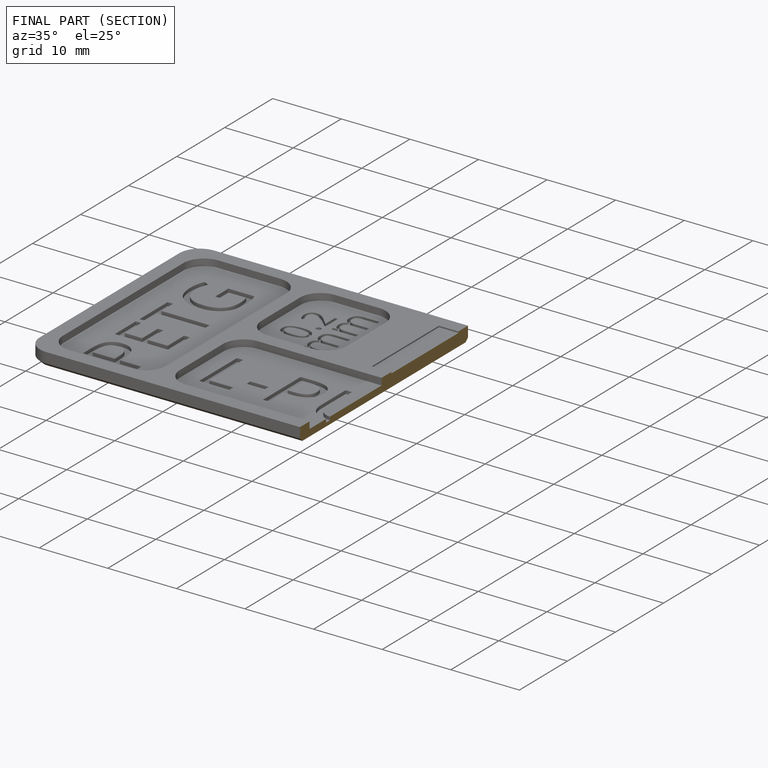
[diagram: finished part — half-section view (interior)]
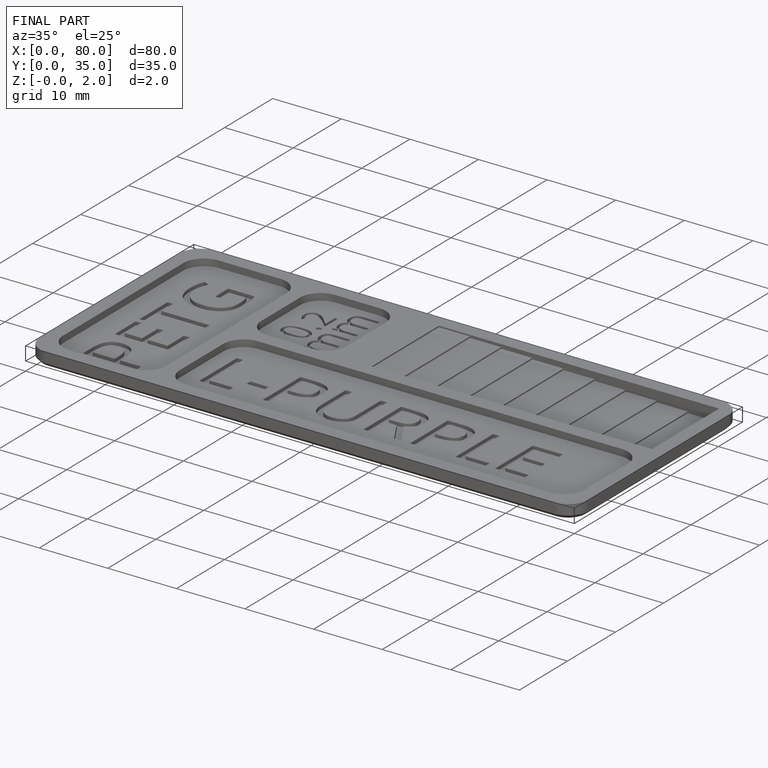
[diagram: finished part — iso view with bounding-box wireframe]
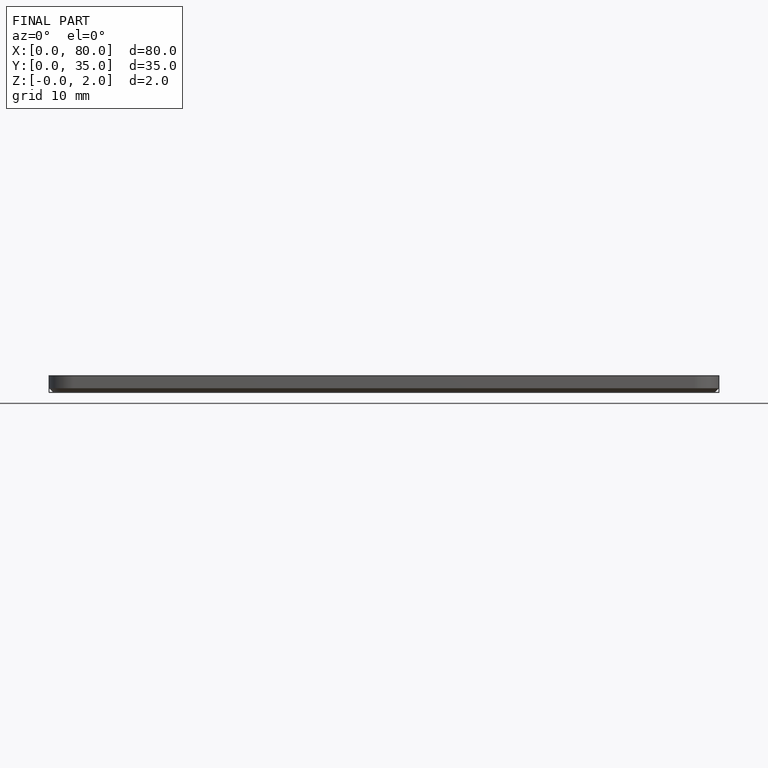
[diagram: finished part — front view with bounding-box wireframe]
